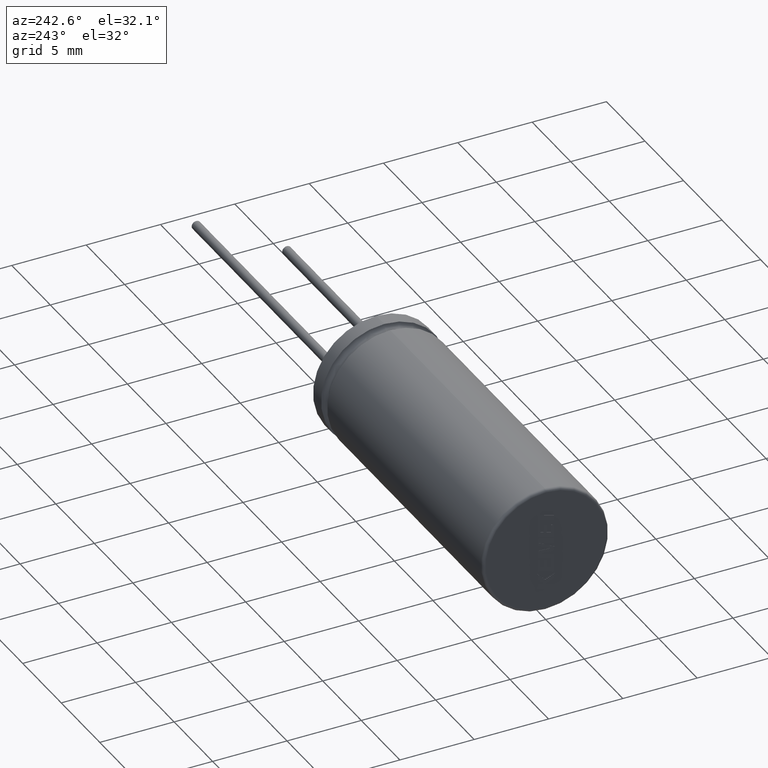
[diagram: clean part render]
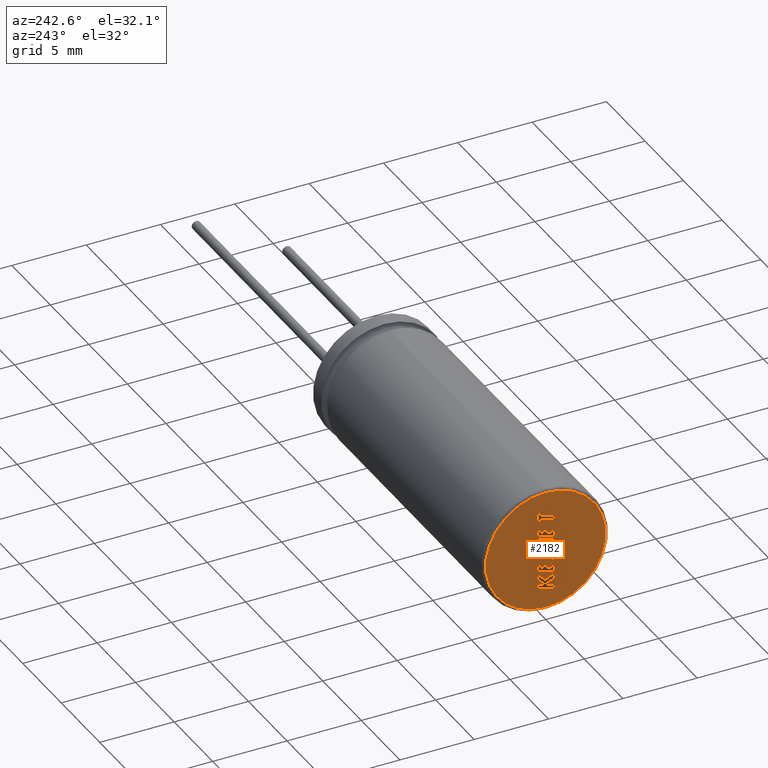
[diagram: same view with one face highlighted and labeled with its STEP entity id]
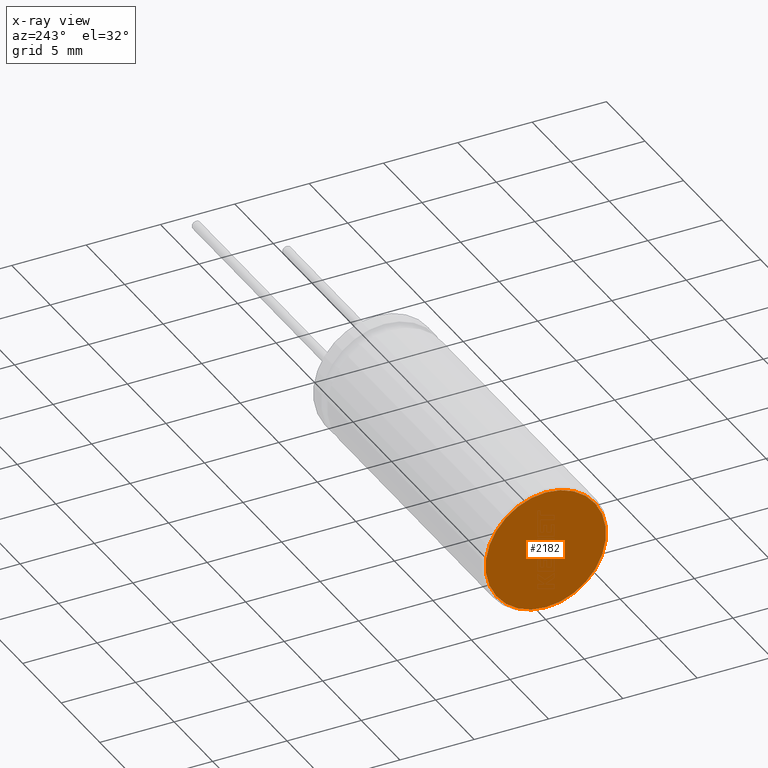
[diagram: x-ray of the same camera — body ghosted, the highlighted face saturated]
A machine part, auxiliary view. The second image highlights one B-rep face of the part: STEP entity #2182.
The next image is the same camera in x-ray: the body ghosted, the highlighted face saturated — about 0% of this face is hidden behind the body in this view.
In plain terms, the highlighted planar face has unit normal (1, 0, 0).
Its self-contained STEP definition (entity closure, byte-faithful):
#222 = AXIS2_PLACEMENT_3D ( 'NONE', #1699, #2465, #375 ) ;
#238 = DIRECTION ( 'NONE',  ( -1.000000000000000000, -0.0000000000000000000, -0.0000000000000000000 ) ) ;
#258 = CIRCLE ( 'NONE', #1075, 4.050000000000000700 ) ;
#375 = DIRECTION ( 'NONE',  ( 0.0000000000000000000, 0.0000000000000000000, -1.000000000000000000 ) ) ;
#393 = CARTESIAN_POINT ( 'NONE',  ( 0.0000000000000000000, 5.082284216461516100E-016, 4.050000000000000700 ) ) ;
#440 = PLANE ( 'NONE',  #3074 ) ;
#746 = ORIENTED_EDGE ( 'NONE', *, *, #3323, .T. ) ;
#1075 = AXIS2_PLACEMENT_3D ( 'NONE', #2352, #238, #2600 ) ;
#1699 = CARTESIAN_POINT ( 'NONE',  ( 0.0000000000000000000, 0.0000000000000000000, 0.0000000000000000000 ) ) ;
#1719 = CIRCLE ( 'NONE', #222, 4.050000000000000700 ) ;
#1930 = FACE_OUTER_BOUND ( 'NONE', #3282, .T. ) ;
#2057 = EDGE_CURVE ( 'NONE', #2106, #3152, #258, .T. ) ;
#2106 = VERTEX_POINT ( 'NONE', #3118 ) ;
#2182 = ADVANCED_FACE ( 'NONE', ( #1930 ), #440, .F. ) ;
#2352 = CARTESIAN_POINT ( 'NONE',  ( 0.0000000000000000000, 0.0000000000000000000, 0.0000000000000000000 ) ) ;
#2465 = DIRECTION ( 'NONE',  ( -1.000000000000000000, -0.0000000000000000000, -0.0000000000000000000 ) ) ;
#2511 = CARTESIAN_POINT ( 'NONE',  ( 0.0000000000000000000, 0.0000000000000000000, 0.0000000000000000000 ) ) ;
#2600 = DIRECTION ( 'NONE',  ( 0.0000000000000000000, 0.0000000000000000000, -1.000000000000000000 ) ) ;
#2806 = DIRECTION ( 'NONE',  ( 1.000000000000000000, 0.0000000000000000000, 0.0000000000000000000 ) ) ;
#2910 = ORIENTED_EDGE ( 'NONE', *, *, #2057, .T. ) ;
#3074 = AXIS2_PLACEMENT_3D ( 'NONE', #2511, #2806, #3350 ) ;
#3118 = CARTESIAN_POINT ( 'NONE',  ( 0.0000000000000000000, 0.0000000000000000000, -4.050000000000000700 ) ) ;
#3152 = VERTEX_POINT ( 'NONE', #393 ) ;
#3282 = EDGE_LOOP ( 'NONE', ( #2910, #746 ) ) ;
#3323 = EDGE_CURVE ( 'NONE', #3152, #2106, #1719, .T. ) ;
#3350 = DIRECTION ( 'NONE',  ( 0.0000000000000000000, 0.0000000000000000000, -1.000000000000000000 ) ) ;